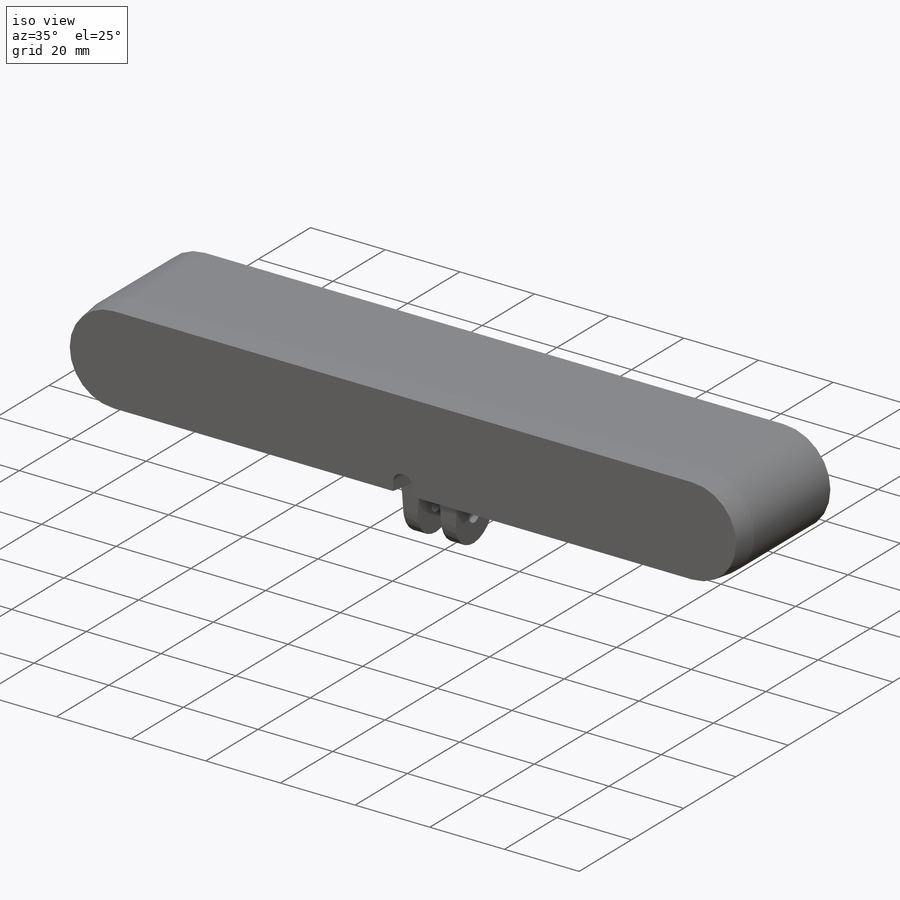
[diagram: iso view]
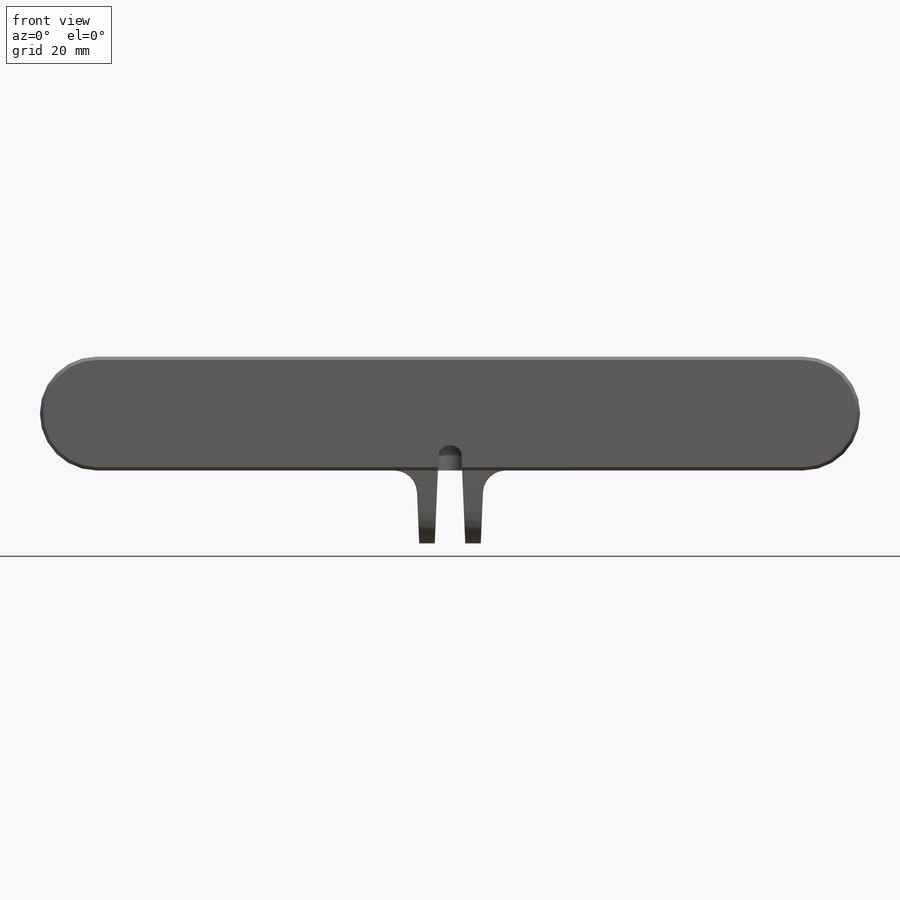
[diagram: front view]
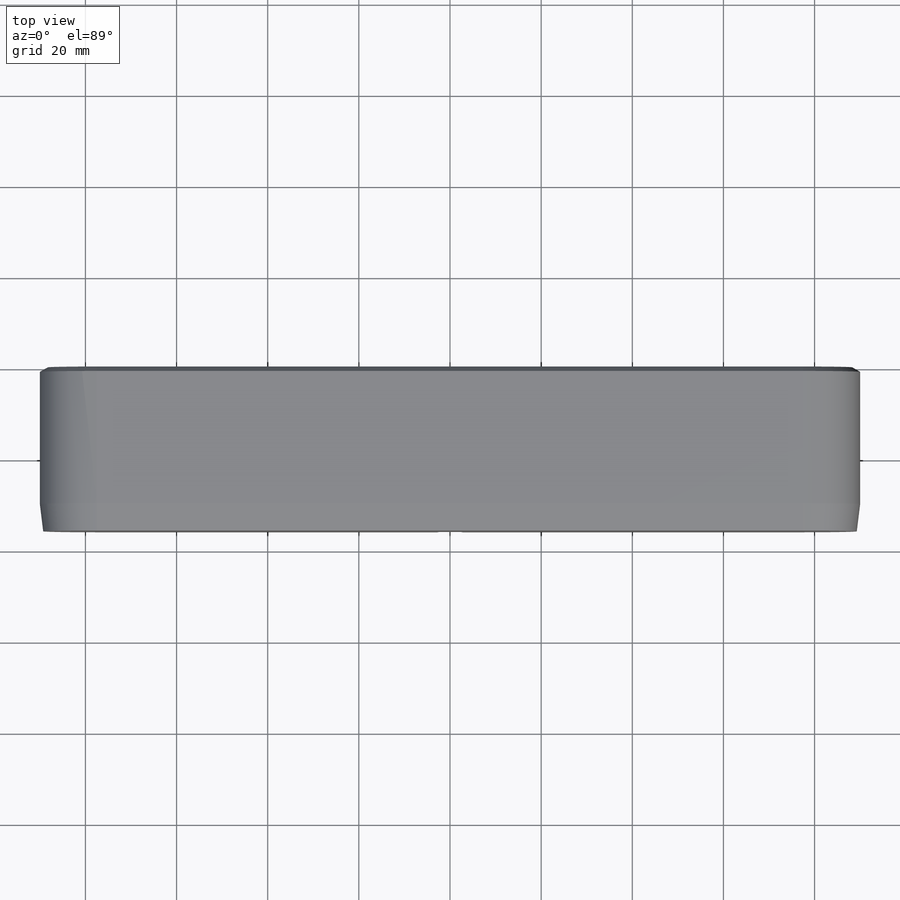
[diagram: top view]
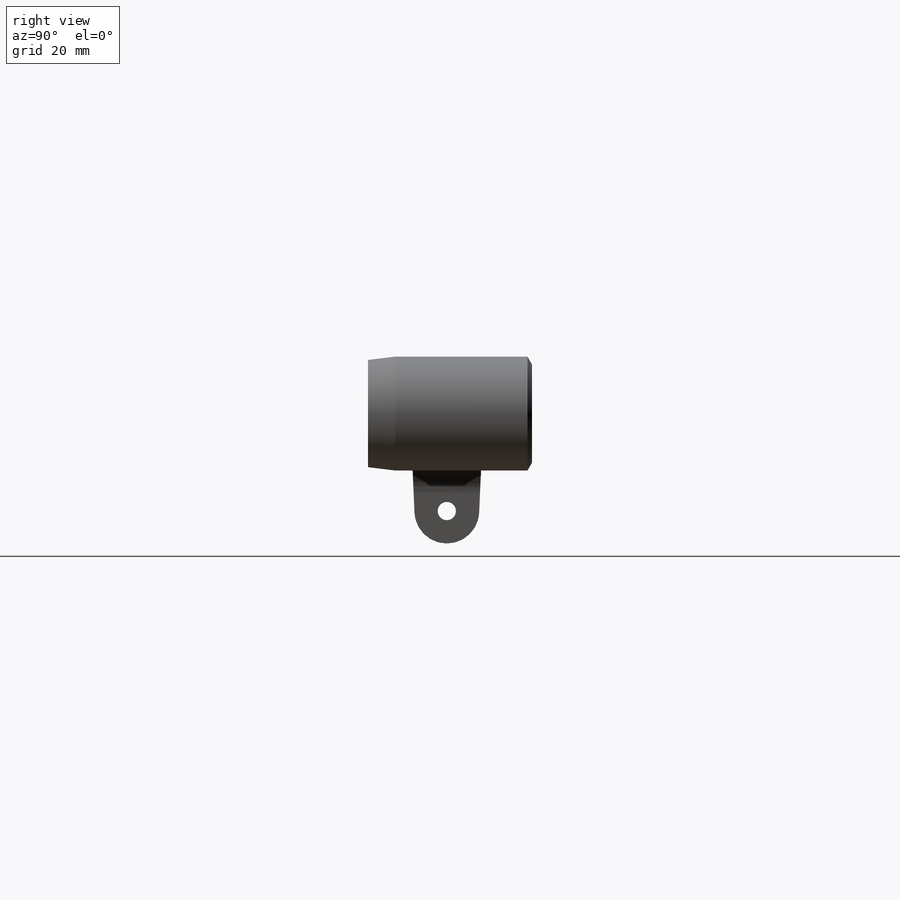
[diagram: right view]
SOLIDWORKS PART (.sldprt)
format: sldprt  version: not decoded by parser v0  size: 339,968 bytes
history: native  units: mm
features: sketch x7, fillet x5, cut_extrude x5, chamfer x4, extrude x2, mirror x2, material x1 (+11 scaffold rows collapsed)
feature tree (37):
  scaffold x11  (default folders/planes/origin — collapsed)
  material  "Material <not specified>"
  sketch  "Sketch1"  dims[D1=25.0mm D2=180.0mm]
  extrude  "Boss-Extrude1"  Depth=36mm
  fillet  "Fillet1"  [1 undecoded]
  fillet  "Fillet2"  [1 undecoded]
  chamfer  "Chamfer1"  Distance=6mm Angle=7deg
  chamfer  "Chamfer2"  Distance=1mm Angle=60deg
  sketch  "Sketch2"  dims[D1=18.5mm D2=26.5mm D3=20.25mm]
  cut_extrude  "Cut-Extrude1"  Depth=1mm
  chamfer  "Chamfer3"  Distance=0.5mm Angle=20deg
  sketch  "Sketch4"  dims[D3=4.5mm D6=1.0mm D1=16.0mm D2=7.5mm D4=0.15mm D5=0.8mm]
  cut_extrude  "Cut-Extrude2"  Depth=1mm
  cut_extrude  "Cut-Extrude3"  [1 undecoded]
  sketch  "Sketch4<2>"  dims[D1=3.0mm]
  chamfer  "Chamfer4"  Distance=0.5mm Angle=20deg
  mirror  "Mirror1"
  sketch  "Sketch6"  dims[D1=9.8mm D2=15.0mm D3=4.8mm D4=2.65mm]
  extrude  "Boss-Extrude2"  Depth=16mm
  fillet  "Fillet3"  Radius=5mm
  fillet  "Fillet4"  [1 undecoded]
  mirror  "Mirror2"
  sketch  "Sketch7"  dims[D1=~1.865549mm]
  cut_extrude  "Cut-Extrude4"  [1 undecoded]
  sketch  "Sketch8"
  cut_extrude  "Cut-Extrude5"  Depth=5.5mm
  fillet  "Fillet5"  Radius=2.5mm
decode coverage: 17 of 25 modeling features carry decoded parameters
note: ~ marks probable driven/reference dimensions
note: 5 parameter values undecoded
summary: no parameter record found for 5 features
note: suppression state not decoded; provenance and decode notes live in map.json
